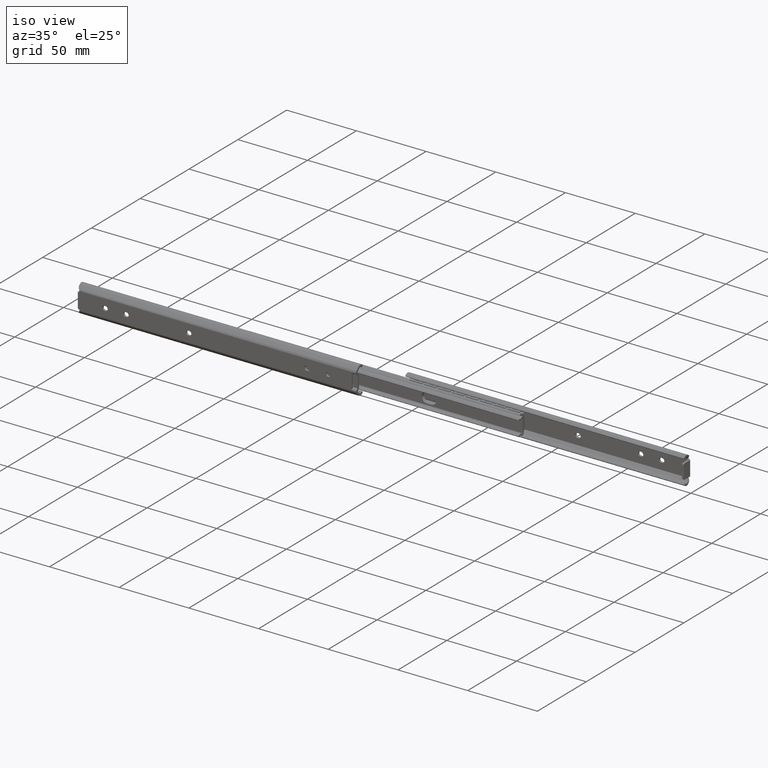
[diagram: clean part render]
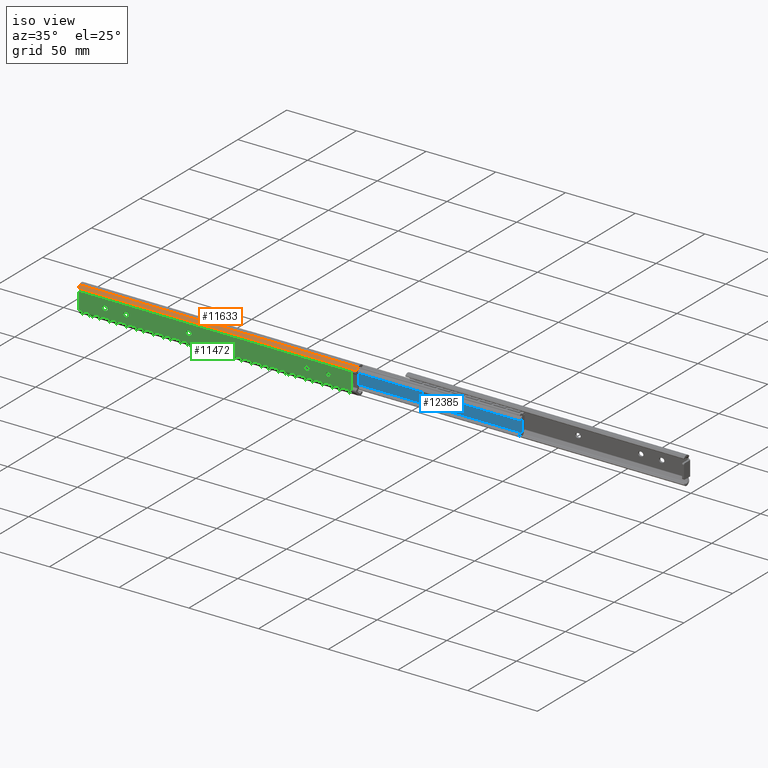
[diagram: same view with three faces highlighted in distinct colors, each labeled with its STEP entity id]
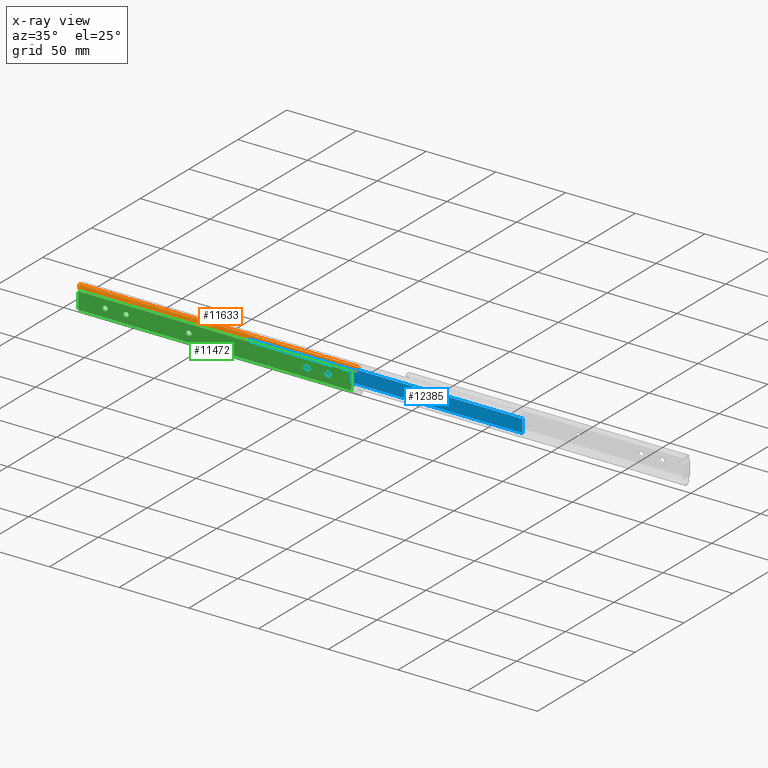
[diagram: x-ray of the same camera — body ghosted, the three highlighted faces saturated]
A machine part, iso view with three faces highlighted in distinct colors.
The next image is the same camera in x-ray (body ghosted, the three faces saturated) — at least one of them is partly hidden behind the body in this view.
Their STEP definitions:

[orange] entity #11633 — the highlighted face is a freeform B-spline surface patch.
#9667=CARTESIAN_POINT('',(199.159981460542500,-0.607033000000000,7.474195000000000));
#9668=VERTEX_POINT('',#9667);
#9669=CARTESIAN_POINT('',(199.707106890593000,-1.196151636336740,8.021320109406650));
#9670=VERTEX_POINT('',#9669);
#9671=CARTESIAN_POINT('',(199.159981460542500,-0.607033000000000,7.474195000000000));
#9672=CARTESIAN_POINT('',(199.707106890593000,-1.196151636336740,8.021320109406650));
#9673=QUASI_UNIFORM_CURVE('',1,(#9671,#9672),.UNSPECIFIED.,.F.,.U.);
#9674=EDGE_CURVE('',#9668,#9670,#9673,.T.);
#9785=CARTESIAN_POINT('',(200.0,-1.957531415335170,8.728427000000000));
#9786=VERTEX_POINT('',#9785);
#9787=CARTESIAN_POINT('',(200.0,-1.957531415335170,8.728427000000000));
#9788=CARTESIAN_POINT('',(199.999999999999970,-1.511525702522513,8.314213528262183));
#9789=CARTESIAN_POINT('',(199.707106890593000,-1.196151636336740,8.021320109406650));
#9797=(BOUNDED_CURVE()B_SPLINE_CURVE(2,(#9787,#9788,#9789),.UNSPECIFIED.,.F.,.U.)CURVE()GEOMETRIC_REPRESENTATION_ITEM()QUASI_UNIFORM_CURVE()RATIONAL_B_SPLINE_CURVE((1.0,0.923879562116460,1.0))REPRESENTATION_ITEM(''));
#9798=EDGE_CURVE('',#9786,#9670,#9797,.T.);
#10303=CARTESIAN_POINT('',(0.0,-2.466980046918095,9.201560556579119));
#10304=VERTEX_POINT('',#10303);
#10320=CARTESIAN_POINT('',(0.0,-0.607033000000087,7.474195000000000));
#10321=VERTEX_POINT('',#10320);
#10322=CARTESIAN_POINT('',(0.0,-2.466980046918095,9.201560556579119));
#10323=CARTESIAN_POINT('',(0.0,-0.607033000000087,7.474195000000000));
#10324=QUASI_UNIFORM_CURVE('',1,(#10322,#10323),.UNSPECIFIED.,.F.,.U.);
#10325=EDGE_CURVE('',#10304,#10321,#10324,.T.);
#11487=CARTESIAN_POINT('',(199.159981460542500,-0.607033000000000,7.474195000000000));
#11488=CARTESIAN_POINT('',(0.0,-0.607033000000087,7.474195000000000));
#11489=QUASI_UNIFORM_CURVE('',1,(#11487,#11488),.UNSPECIFIED.,.F.,.U.);
#11490=EDGE_CURVE('',#9668,#10321,#11489,.T.);
#11548=CARTESIAN_POINT('',(200.0,-2.466980046918005,9.201560556579020));
#11549=VERTEX_POINT('',#11548);
#11566=CARTESIAN_POINT('',(200.0,-2.466980046918005,9.201560556579020));
#11567=CARTESIAN_POINT('',(200.0,-1.957531415335170,8.728427000000000));
#11568=QUASI_UNIFORM_CURVE('',1,(#11566,#11567),.UNSPECIFIED.,.F.,.U.);
#11569=EDGE_CURVE('',#11549,#9786,#11568,.T.);
#11616=CARTESIAN_POINT('',(-9.989999612361183,-0.514128654095802,7.387913074565044));
#11617=CARTESIAN_POINT('',(-9.989999612361183,-2.559884332910641,9.287842913367777));
#11618=CARTESIAN_POINT('',(209.990004976779200,-0.514128654095802,7.387913074565044));
#11619=CARTESIAN_POINT('',(209.990004976779200,-2.559884332910641,9.287842913367777));
#11620=B_SPLINE_SURFACE_WITH_KNOTS('',1,1,((#11616,#11618),(#11617,#11619)),.UNSPECIFIED.,.F.,.F.,.U.,(2,2),(2,2),(0.0,2.791925803057120),(0.0,219.980004589140410),.UNSPECIFIED.);
#11621=ORIENTED_EDGE('',*,*,#11569,.T.);
#11622=ORIENTED_EDGE('',*,*,#9798,.T.);
#11623=ORIENTED_EDGE('',*,*,#9674,.F.);
#11624=ORIENTED_EDGE('',*,*,#11490,.T.);
#11625=ORIENTED_EDGE('',*,*,#10325,.F.);
#11626=CARTESIAN_POINT('',(200.0,-2.466980046918005,9.201560556579020));
#11627=CARTESIAN_POINT('',(0.0,-2.466980046918095,9.201560556579119));
#11628=QUASI_UNIFORM_CURVE('',1,(#11626,#11627),.UNSPECIFIED.,.F.,.U.);
#11629=EDGE_CURVE('',#11549,#10304,#11628,.T.);
#11630=ORIENTED_EDGE('',*,*,#11629,.F.);
#11631=EDGE_LOOP('',(#11621,#11622,#11623,#11624,#11625,#11630));
#11632=FACE_OUTER_BOUND('',#11631,.T.);
#11633=ADVANCED_FACE('',(#11632),#11620,.T.);

[blue] entity #12385 — the highlighted face is a freeform B-spline surface patch.
#11815=CARTESIAN_POINT('',(-111.300000000000000,-9.199999999999999,-4.641039999999910));
#11816=VERTEX_POINT('',#11815);
#11822=CARTESIAN_POINT('',(-110.099999999999990,-9.199999999999999,-4.300000000000000));
#11823=VERTEX_POINT('',#11822);
#11824=CARTESIAN_POINT('',(-111.300000000000000,-9.199999999999999,-4.641039999999910));
#11825=CARTESIAN_POINT('',(-110.099999999999990,-9.199999999999999,-4.300000000000000));
#11826=QUASI_UNIFORM_CURVE('',1,(#11824,#11825),.UNSPECIFIED.,.F.,.U.);
#11827=EDGE_CURVE('',#11816,#11823,#11826,.T.);
#11851=CARTESIAN_POINT('',(-110.099999999999990,-9.199999999999999,4.300000000000000));
#11852=VERTEX_POINT('',#11851);
#11858=CARTESIAN_POINT('',(-111.300000000000000,-9.199999999999999,4.641040000000000));
#11859=VERTEX_POINT('',#11858);
#11860=CARTESIAN_POINT('',(-110.099999999999990,-9.199999999999999,4.300000000000000));
#11861=CARTESIAN_POINT('',(-111.300000000000000,-9.199999999999999,4.641040000000000));
#11862=QUASI_UNIFORM_CURVE('',1,(#11860,#11861),.UNSPECIFIED.,.F.,.U.);
#11863=EDGE_CURVE('',#11852,#11859,#11862,.T.);
#11885=CARTESIAN_POINT('',(-110.099999999999990,-9.199999999999999,-4.300000000000000));
#11886=CARTESIAN_POINT('',(-110.099999999999990,-9.199999999999999,4.300000000000000));
#11887=QUASI_UNIFORM_CURVE('',1,(#11885,#11886),.UNSPECIFIED.,.F.,.U.);
#11888=EDGE_CURVE('',#11823,#11852,#11887,.T.);
#12077=CARTESIAN_POINT('',(85.700000000000003,-9.200000000000101,4.641040000000000));
#12078=VERTEX_POINT('',#12077);
#12094=CARTESIAN_POINT('',(85.700000000000003,-9.199999999999999,-4.641039999999910));
#12095=VERTEX_POINT('',#12094);
#12096=CARTESIAN_POINT('',(85.700000000000003,-9.199999999999999,-4.641039999999910));
#12097=CARTESIAN_POINT('',(85.700000000000003,-9.200000000000101,4.641040000000000));
#12098=QUASI_UNIFORM_CURVE('',1,(#12096,#12097),.UNSPECIFIED.,.F.,.U.);
#12099=EDGE_CURVE('',#12095,#12078,#12098,.T.);
#12237=CARTESIAN_POINT('',(-111.300000000000000,-9.199999999999999,-4.641039999999910));
#12238=CARTESIAN_POINT('',(85.700000000000003,-9.199999999999999,-4.641039999999910));
#12239=QUASI_UNIFORM_CURVE('',1,(#12237,#12238),.UNSPECIFIED.,.F.,.U.);
#12240=EDGE_CURVE('',#11816,#12095,#12239,.T.);
#12268=CARTESIAN_POINT('',(-121.140152612943500,-9.200000000000101,-5.104679757713797));
#12269=CARTESIAN_POINT('',(-121.140152612943500,-9.200000000000101,5.104679425760839));
#12270=CARTESIAN_POINT('',(95.540140283722707,-9.200000000000101,-5.104679757713797));
#12271=CARTESIAN_POINT('',(95.540140283722707,-9.200000000000101,5.104679425760839));
#12272=B_SPLINE_SURFACE_WITH_KNOTS('',1,1,((#12268,#12270),(#12269,#12271)),.UNSPECIFIED.,.F.,.F.,.U.,(2,2),(2,2),(0.0,10.209359183474641),(0.0,216.680292896666200),.UNSPECIFIED.);
#12273=ORIENTED_EDGE('',*,*,#12240,.T.);
#12274=ORIENTED_EDGE('',*,*,#12099,.T.);
#12275=CARTESIAN_POINT('',(-111.300000000000000,-9.199999999999999,4.641040000000000));
#12276=CARTESIAN_POINT('',(85.700000000000003,-9.200000000000101,4.641040000000000));
#12277=QUASI_UNIFORM_CURVE('',1,(#12275,#12276),.UNSPECIFIED.,.F.,.U.);
#12278=EDGE_CURVE('',#11859,#12078,#12277,.T.);
#12279=ORIENTED_EDGE('',*,*,#12278,.F.);
#12280=ORIENTED_EDGE('',*,*,#11863,.F.);
#12281=ORIENTED_EDGE('',*,*,#11888,.F.);
#12282=ORIENTED_EDGE('',*,*,#11827,.F.);
#12283=EDGE_LOOP('',(#12273,#12274,#12279,#12280,#12281,#12282));
#12284=FACE_OUTER_BOUND('',#12283,.T.);
#12285=CARTESIAN_POINT('',(20.300000000000299,-9.200000000000140,-3.649999999999920));
#12286=VERTEX_POINT('',#12285);
#12287=CARTESIAN_POINT('',(20.300000000000299,-9.200000000000140,3.650000000000000));
#12288=VERTEX_POINT('',#12287);
#12289=CARTESIAN_POINT('',(20.300000000000299,-9.200000000000140,-3.649999999999920));
#12290=CARTESIAN_POINT('',(23.950000000000294,-9.200000000000140,-3.650000000000000));
#12291=CARTESIAN_POINT('',(23.950000000000301,-9.200000000000140,0.0));
#12292=CARTESIAN_POINT('',(23.950000000000294,-9.200000000000140,3.650000000000000));
#12293=CARTESIAN_POINT('',(20.300000000000299,-9.200000000000140,3.650000000000000));
#12301=(BOUNDED_CURVE()B_SPLINE_CURVE(2,(#12289,#12290,#12291,#12292,#12293),.UNSPECIFIED.,.F.,.U.)B_SPLINE_CURVE_WITH_KNOTS((3,2,3),(0.0,0.500000000000000,1.0),.UNSPECIFIED.)CURVE()GEOMETRIC_REPRESENTATION_ITEM()RATIONAL_B_SPLINE_CURVE((1.0,0.707106781186547,1.0,0.707106781186547,1.0))REPRESENTATION_ITEM(''));
#12302=EDGE_CURVE('',#12286,#12288,#12301,.T.);
#12303=ORIENTED_EDGE('',*,*,#12302,.F.);
#12304=CARTESIAN_POINT('',(17.100000000000300,-9.200000000000140,-3.649999999999920));
#12305=VERTEX_POINT('',#12304);
#12306=CARTESIAN_POINT('',(17.100000000000300,-9.200000000000140,-3.649999999999920));
#12307=CARTESIAN_POINT('',(20.300000000000299,-9.200000000000140,-3.649999999999920));
#12308=QUASI_UNIFORM_CURVE('',1,(#12306,#12307),.UNSPECIFIED.,.F.,.U.);
#12309=EDGE_CURVE('',#12305,#12286,#12308,.T.);
#12310=ORIENTED_EDGE('',*,*,#12309,.F.);
#12311=CARTESIAN_POINT('',(17.100000000000001,-9.200000000000101,3.650000000000000));
#12312=VERTEX_POINT('',#12311);
#12313=CARTESIAN_POINT('',(17.100000000000001,-9.200000000000101,3.650000000000000));
#12314=CARTESIAN_POINT('',(13.450000000000299,-9.200000000000140,3.650000000000000));
#12315=CARTESIAN_POINT('',(13.450000000000299,-9.200000000000140,0.0));
#12316=CARTESIAN_POINT('',(13.450000000000299,-9.200000000000140,-3.650000000000000));
#12317=CARTESIAN_POINT('',(17.100000000000300,-9.200000000000140,-3.649999999999920));
#12325=(BOUNDED_CURVE()B_SPLINE_CURVE(2,(#12313,#12314,#12315,#12316,#12317),.UNSPECIFIED.,.F.,.U.)B_SPLINE_CURVE_WITH_KNOTS((3,2,3),(0.0,0.500000000000000,1.0),.UNSPECIFIED.)CURVE()GEOMETRIC_REPRESENTATION_ITEM()RATIONAL_B_SPLINE_CURVE((1.0,0.707106781186547,1.0,0.707106781186547,1.0))REPRESENTATION_ITEM(''));
#12326=EDGE_CURVE('',#12312,#12305,#12325,.T.);
#12327=ORIENTED_EDGE('',*,*,#12326,.F.);
#12328=CARTESIAN_POINT('',(20.300000000000299,-9.200000000000140,3.650000000000000));
#12329=CARTESIAN_POINT('',(17.100000000000001,-9.200000000000101,3.650000000000000));
#12330=QUASI_UNIFORM_CURVE('',1,(#12328,#12329),.UNSPECIFIED.,.F.,.U.);
#12331=EDGE_CURVE('',#12288,#12312,#12330,.T.);
#12332=ORIENTED_EDGE('',*,*,#12331,.F.);
#12333=EDGE_LOOP('',(#12303,#12310,#12327,#12332));
#12334=FACE_BOUND('',#12333,.T.);
#12335=CARTESIAN_POINT('',(-45.700000000000003,-9.200000000000140,-3.650000000000000));
#12336=VERTEX_POINT('',#12335);
#12337=CARTESIAN_POINT('',(-45.700000000000003,-9.200000000000140,3.650000000000000));
#12338=VERTEX_POINT('',#12337);
#12339=CARTESIAN_POINT('',(-45.700000000000003,-9.200000000000140,-3.650000000000000));
#12340=CARTESIAN_POINT('',(-42.049999999999997,-9.200000000000140,-3.650000000000000));
#12341=CARTESIAN_POINT('',(-42.049999999999997,-9.200000000000140,0.0));
#12342=CARTESIAN_POINT('',(-42.049999999999997,-9.200000000000140,3.650000000000000));
#12343=CARTESIAN_POINT('',(-45.700000000000003,-9.200000000000140,3.650000000000000));
#12351=(BOUNDED_CURVE()B_SPLINE_CURVE(2,(#12339,#12340,#12341,#12342,#12343),.UNSPECIFIED.,.F.,.U.)B_SPLINE_CURVE_WITH_KNOTS((3,2,3),(0.0,0.500000000000000,1.0),.UNSPECIFIED.)CURVE()GEOMETRIC_REPRESENTATION_ITEM()RATIONAL_B_SPLINE_CURVE((1.0,0.707106781186547,1.0,0.707106781186547,1.0))REPRESENTATION_ITEM(''));
#12352=EDGE_CURVE('',#12336,#12338,#12351,.T.);
#12353=ORIENTED_EDGE('',*,*,#12352,.F.);
#12354=CARTESIAN_POINT('',(-48.899999999999999,-9.200000000000140,-3.650000000000000));
#12355=VERTEX_POINT('',#12354);
#12356=CARTESIAN_POINT('',(-48.899999999999999,-9.200000000000140,-3.650000000000000));
#12357=CARTESIAN_POINT('',(-45.700000000000003,-9.200000000000140,-3.650000000000000));
#12358=QUASI_UNIFORM_CURVE('',1,(#12356,#12357),.UNSPECIFIED.,.F.,.U.);
#12359=EDGE_CURVE('',#12355,#12336,#12358,.T.);
#12360=ORIENTED_EDGE('',*,*,#12359,.F.);
#12361=CARTESIAN_POINT('',(-48.899999999999999,-9.200000000000101,3.650000000000090));
#12362=VERTEX_POINT('',#12361);
#12363=CARTESIAN_POINT('',(-48.899999999999999,-9.200000000000140,3.650000000000000));
#12364=CARTESIAN_POINT('',(-52.549999999999997,-9.200000000000140,3.650000000000000));
#12365=CARTESIAN_POINT('',(-52.549999999999997,-9.200000000000140,0.0));
#12366=CARTESIAN_POINT('',(-52.549999999999997,-9.200000000000140,-3.650000000000000));
#12367=CARTESIAN_POINT('',(-48.899999999999999,-9.200000000000140,-3.650000000000000));
#12375=(BOUNDED_CURVE()B_SPLINE_CURVE(2,(#12363,#12364,#12365,#12366,#12367),.UNSPECIFIED.,.F.,.U.)B_SPLINE_CURVE_WITH_KNOTS((3,2,3),(0.0,0.500000000000000,1.0),.UNSPECIFIED.)CURVE()GEOMETRIC_REPRESENTATION_ITEM()RATIONAL_B_SPLINE_CURVE((1.0,0.707106781186547,1.0,0.707106781186547,1.0))REPRESENTATION_ITEM(''));
#12376=EDGE_CURVE('',#12362,#12355,#12375,.T.);
#12377=ORIENTED_EDGE('',*,*,#12376,.F.);
#12378=CARTESIAN_POINT('',(-45.700000000000003,-9.200000000000140,3.650000000000000));
#12379=CARTESIAN_POINT('',(-48.899999999999999,-9.200000000000101,3.650000000000090));
#12380=QUASI_UNIFORM_CURVE('',1,(#12378,#12379),.UNSPECIFIED.,.F.,.U.);
#12381=EDGE_CURVE('',#12338,#12362,#12380,.T.);
#12382=ORIENTED_EDGE('',*,*,#12381,.F.);
#12383=EDGE_LOOP('',(#12353,#12360,#12377,#12382));
#12384=FACE_BOUND('',#12383,.T.);
#12385=ADVANCED_FACE('',(#12284,#12334,#12384),#12272,.F.);

[green] entity #11472 — the highlighted face is a freeform B-spline surface patch.
#8533=CARTESIAN_POINT('',(21.597015677321561,4.857226E-017,-0.097677665764265));
#8534=VERTEX_POINT('',#8533);
#8540=CARTESIAN_POINT('',(20.0,0.0,-1.600000000000000));
#8541=VERTEX_POINT('',#8540);
#8542=CARTESIAN_POINT('',(20.0,0.0,-1.600000000000000));
#8543=CARTESIAN_POINT('',(21.505129702311947,0.0,-1.600000000000001));
#8544=CARTESIAN_POINT('',(21.597015677321558,4.857226E-017,-0.097677665764265));
#8552=(BOUNDED_CURVE()B_SPLINE_CURVE(2,(#8542,#8543,#8544),.UNSPECIFIED.,.F.,.U.)B_SPLINE_CURVE_WITH_KNOTS((3,3),(0.500000000000000,0.739332961699916),.UNSPECIFIED.)CURVE()GEOMETRIC_REPRESENTATION_ITEM()RATIONAL_B_SPLINE_CURVE((1.0,0.719603993918219,0.976072040511481))REPRESENTATION_ITEM(''));
#8553=EDGE_CURVE('',#8541,#8534,#8552,.T.);
#8555=CARTESIAN_POINT('',(18.411184758233269,4.614071E-017,0.188854778943284));
#8556=VERTEX_POINT('',#8555);
#8557=CARTESIAN_POINT('',(18.411184758233265,4.614071E-017,0.188854778943284));
#8558=CARTESIAN_POINT('',(18.399999999999991,0.0,0.094758594972449));
#8559=CARTESIAN_POINT('',(18.399999999999999,0.0,0.0));
#8560=CARTESIAN_POINT('',(18.399999999999991,0.0,-1.600000000000000));
#8561=CARTESIAN_POINT('',(20.0,0.0,-1.600000000000000));
#8569=(BOUNDED_CURVE()B_SPLINE_CURVE(2,(#8557,#8558,#8559,#8560,#8561),.UNSPECIFIED.,.F.,.U.)B_SPLINE_CURVE_WITH_KNOTS((3,2,3),(0.229562472772652,0.250000000000000,0.500000000000000),.UNSPECIFIED.)CURVE()GEOMETRIC_REPRESENTATION_ITEM()RATIONAL_B_SPLINE_CURVE((0.956026752731590,0.976055947463178,1.0,0.707106781186548,1.0))REPRESENTATION_ITEM(''));
#8570=EDGE_CURVE('',#8556,#8541,#8569,.T.);
#8614=CARTESIAN_POINT('',(20.0,0.0,1.600000000000000));
#8615=VERTEX_POINT('',#8614);
#8616=CARTESIAN_POINT('',(20.0,0.0,1.600000000000000));
#8617=CARTESIAN_POINT('',(18.578920764769308,0.0,1.600000000000000));
#8618=CARTESIAN_POINT('',(18.411184758233272,4.614071E-017,0.188854778943284));
#8626=(BOUNDED_CURVE()B_SPLINE_CURVE(2,(#8616,#8617,#8618),.UNSPECIFIED.,.F.,.U.)B_SPLINE_CURVE_WITH_KNOTS((3,3),(0.0,0.229562472772652),.UNSPECIFIED.)CURVE()GEOMETRIC_REPRESENTATION_ITEM()RATIONAL_B_SPLINE_CURVE((1.0,0.731050833723370,0.956026752731590))REPRESENTATION_ITEM(''));
#8627=EDGE_CURVE('',#8615,#8556,#8626,.T.);
#8629=CARTESIAN_POINT('',(21.597015677321558,4.857226E-017,-0.097677665764265));
#8630=CARTESIAN_POINT('',(21.600000000000001,0.0,-0.048884423793270));
#8631=CARTESIAN_POINT('',(21.600000000000001,0.0,0.0));
#8632=CARTESIAN_POINT('',(21.600000000000005,0.0,1.600000000000000));
#8633=CARTESIAN_POINT('',(20.0,0.0,1.600000000000000));
#8641=(BOUNDED_CURVE()B_SPLINE_CURVE(2,(#8629,#8630,#8631,#8632,#8633),.UNSPECIFIED.,.F.,.U.)B_SPLINE_CURVE_WITH_KNOTS((3,2,3),(0.739332961699916,0.750000000000000,1.0),.UNSPECIFIED.)CURVE()GEOMETRIC_REPRESENTATION_ITEM()RATIONAL_B_SPLINE_CURVE((0.976072040511482,0.987502787268329,1.0,0.707106781186548,1.0))REPRESENTATION_ITEM(''));
#8642=EDGE_CURVE('',#8534,#8615,#8641,.T.);
#8677=CARTESIAN_POINT('',(35.299999999999997,8.526513E-014,-1.600000000000080));
#8678=VERTEX_POINT('',#8677);
#8684=CARTESIAN_POINT('',(34.700000000000003,0.0,-1.600000000000000));
#8685=VERTEX_POINT('',#8684);
#8686=CARTESIAN_POINT('',(34.700000000000003,0.0,-1.600000000000000));
#8687=CARTESIAN_POINT('',(35.299999999999997,8.526513E-014,-1.600000000000080));
#8688=QUASI_UNIFORM_CURVE('',1,(#8686,#8687),.UNSPECIFIED.,.F.,.U.);
#8689=EDGE_CURVE('',#8685,#8678,#8688,.T.);
#8735=CARTESIAN_POINT('',(34.700000000000003,0.0,1.600000000000025));
#8736=VERTEX_POINT('',#8735);
#8737=CARTESIAN_POINT('',(34.700000000000003,0.0,1.600000000000000));
#8738=CARTESIAN_POINT('',(33.100000000000009,0.0,1.600000000000000));
#8739=CARTESIAN_POINT('',(33.100000000000001,0.0,0.0));
#8740=CARTESIAN_POINT('',(33.100000000000009,0.0,-1.600000000000000));
#8741=CARTESIAN_POINT('',(34.700000000000003,0.0,-1.600000000000000));
#8749=(BOUNDED_CURVE()B_SPLINE_CURVE(2,(#8737,#8738,#8739,#8740,#8741),.UNSPECIFIED.,.F.,.U.)B_SPLINE_CURVE_WITH_KNOTS((3,2,3),(0.0,0.500000000000000,1.0),.UNSPECIFIED.)CURVE()GEOMETRIC_REPRESENTATION_ITEM()RATIONAL_B_SPLINE_CURVE((1.0,0.707106781186548,1.0,0.707106781186548,1.0))REPRESENTATION_ITEM(''));
#8750=EDGE_CURVE('',#8736,#8685,#8749,.T.);
#8773=CARTESIAN_POINT('',(35.299999999999997,0.0,1.600000000000025));
#8774=VERTEX_POINT('',#8773);
#8775=CARTESIAN_POINT('',(35.299999999999997,0.0,1.600000000000025));
#8776=CARTESIAN_POINT('',(34.700000000000003,0.0,1.600000000000025));
#8777=QUASI_UNIFORM_CURVE('',1,(#8775,#8776),.UNSPECIFIED.,.F.,.U.);
#8778=EDGE_CURVE('',#8774,#8736,#8777,.T.);
#8822=CARTESIAN_POINT('',(35.299999999999997,8.526513E-014,-1.600000000000080));
#8823=CARTESIAN_POINT('',(36.900000000000006,0.0,-1.600000000000000));
#8824=CARTESIAN_POINT('',(36.899999999999999,0.0,0.0));
#8825=CARTESIAN_POINT('',(36.900000000000006,0.0,1.600000000000000));
#8826=CARTESIAN_POINT('',(35.299999999999997,0.0,1.600000000000000));
#8834=(BOUNDED_CURVE()B_SPLINE_CURVE(2,(#8822,#8823,#8824,#8825,#8826),.UNSPECIFIED.,.F.,.U.)B_SPLINE_CURVE_WITH_KNOTS((3,2,3),(0.0,0.500000000000000,1.0),.UNSPECIFIED.)CURVE()GEOMETRIC_REPRESENTATION_ITEM()RATIONAL_B_SPLINE_CURVE((1.0,0.707106781186548,1.0,0.707106781186548,1.0))REPRESENTATION_ITEM(''));
#8835=EDGE_CURVE('',#8678,#8774,#8834,.T.);
#8878=CARTESIAN_POINT('',(120.300000000000000,1.110223E-013,1.600000000000000));
#8879=VERTEX_POINT('',#8878);
#8885=CARTESIAN_POINT('',(120.300000000000000,0.0,-1.600000000000000));
#8886=VERTEX_POINT('',#8885);
#8887=CARTESIAN_POINT('',(120.300000000000000,0.0,-1.600000000000000));
#8888=CARTESIAN_POINT('',(121.900000000000010,0.0,-1.600000000000000));
#8889=CARTESIAN_POINT('',(121.900000000000010,0.0,0.0));
#8890=CARTESIAN_POINT('',(121.900000000000010,0.0,1.600000000000000));
#8891=CARTESIAN_POINT('',(120.300000000000000,0.0,1.600000000000000));
#8899=(BOUNDED_CURVE()B_SPLINE_CURVE(2,(#8887,#8888,#8889,#8890,#8891),.UNSPECIFIED.,.F.,.U.)B_SPLINE_CURVE_WITH_KNOTS((3,2,3),(0.0,0.500000000000000,1.0),.UNSPECIFIED.)CURVE()GEOMETRIC_REPRESENTATION_ITEM()RATIONAL_B_SPLINE_CURVE((1.0,0.707106781186548,1.0,0.707106781186548,1.0))REPRESENTATION_ITEM(''));
#8900=EDGE_CURVE('',#8886,#8879,#8899,.T.);
#8923=CARTESIAN_POINT('',(119.700000000000000,0.0,-1.600000000000000));
#8924=VERTEX_POINT('',#8923);
#8925=CARTESIAN_POINT('',(119.700000000000000,0.0,-1.600000000000000));
#8926=CARTESIAN_POINT('',(120.300000000000000,0.0,-1.600000000000000));
#8927=QUASI_UNIFORM_CURVE('',1,(#8925,#8926),.UNSPECIFIED.,.F.,.U.);
#8928=EDGE_CURVE('',#8924,#8886,#8927,.T.);
#8974=CARTESIAN_POINT('',(119.700000000000000,0.0,1.600000000000000));
#8975=VERTEX_POINT('',#8974);
#8976=CARTESIAN_POINT('',(119.700000000000000,0.0,1.600000000000000));
#8977=CARTESIAN_POINT('',(118.099999999999980,0.0,1.600000000000000));
#8978=CARTESIAN_POINT('',(118.099999999999990,0.0,0.0));
#8979=CARTESIAN_POINT('',(118.099999999999980,0.0,-1.600000000000000));
#8980=CARTESIAN_POINT('',(119.700000000000000,0.0,-1.600000000000000));
#8988=(BOUNDED_CURVE()B_SPLINE_CURVE(2,(#8976,#8977,#8978,#8979,#8980),.UNSPECIFIED.,.F.,.U.)B_SPLINE_CURVE_WITH_KNOTS((3,2,3),(0.0,0.500000000000000,1.0),.UNSPECIFIED.)CURVE()GEOMETRIC_REPRESENTATION_ITEM()RATIONAL_B_SPLINE_CURVE((1.0,0.707106781186548,1.0,0.707106781186548,1.0))REPRESENTATION_ITEM(''));
#8989=EDGE_CURVE('',#8975,#8924,#8988,.T.);
#9010=CARTESIAN_POINT('',(120.300000000000000,1.110223E-013,1.600000000000000));
#9011=CARTESIAN_POINT('',(119.700000000000000,0.0,1.600000000000000));
#9012=QUASI_UNIFORM_CURVE('',1,(#9010,#9011),.UNSPECIFIED.,.F.,.U.);
#9013=EDGE_CURVE('',#8879,#8975,#9012,.T.);
#9033=CARTESIAN_POINT('',(165.300000000000010,8.526513E-014,-1.600000000000000));
#9034=VERTEX_POINT('',#9033);
#9040=CARTESIAN_POINT('',(164.699999999999990,0.0,-1.600000000000000));
#9041=VERTEX_POINT('',#9040);
#9042=CARTESIAN_POINT('',(164.699999999999990,0.0,-1.600000000000000));
#9043=CARTESIAN_POINT('',(165.300000000000010,8.526513E-014,-1.600000000000000));
#9044=QUASI_UNIFORM_CURVE('',1,(#9042,#9043),.UNSPECIFIED.,.F.,.U.);
#9045=EDGE_CURVE('',#9041,#9034,#9044,.T.);
#9091=CARTESIAN_POINT('',(164.699999999999990,0.0,1.599999999999910));
#9092=VERTEX_POINT('',#9091);
#9093=CARTESIAN_POINT('',(164.699999999999990,0.0,1.600000000000000));
#9094=CARTESIAN_POINT('',(163.099999999999990,0.0,1.600000000000000));
#9095=CARTESIAN_POINT('',(163.099999999999990,0.0,0.0));
#9096=CARTESIAN_POINT('',(163.099999999999990,0.0,-1.600000000000000));
#9097=CARTESIAN_POINT('',(164.699999999999990,0.0,-1.600000000000000));
#9105=(BOUNDED_CURVE()B_SPLINE_CURVE(2,(#9093,#9094,#9095,#9096,#9097),.UNSPECIFIED.,.F.,.U.)B_SPLINE_CURVE_WITH_KNOTS((3,2,3),(0.0,0.500000000000000,1.0),.UNSPECIFIED.)CURVE()GEOMETRIC_REPRESENTATION_ITEM()RATIONAL_B_SPLINE_CURVE((1.0,0.707106781186548,1.0,0.707106781186548,1.0))REPRESENTATION_ITEM(''));
#9106=EDGE_CURVE('',#9092,#9041,#9105,.T.);
#9129=CARTESIAN_POINT('',(165.300000000000010,0.0,1.599999999999910));
#9130=VERTEX_POINT('',#9129);
#9131=CARTESIAN_POINT('',(165.300000000000010,0.0,1.599999999999910));
#9132=CARTESIAN_POINT('',(164.699999999999990,0.0,1.599999999999910));
#9133=QUASI_UNIFORM_CURVE('',1,(#9131,#9132),.UNSPECIFIED.,.F.,.U.);
#9134=EDGE_CURVE('',#9130,#9092,#9133,.T.);
#9178=CARTESIAN_POINT('',(165.300000000000010,0.0,-1.600000000000000));
#9179=CARTESIAN_POINT('',(166.900000000000010,0.0,-1.600000000000000));
#9180=CARTESIAN_POINT('',(166.900000000000010,0.0,0.0));
#9181=CARTESIAN_POINT('',(166.900000000000010,0.0,1.600000000000000));
#9182=CARTESIAN_POINT('',(165.300000000000010,0.0,1.600000000000000));
#9190=(BOUNDED_CURVE()B_SPLINE_CURVE(2,(#9178,#9179,#9180,#9181,#9182),.UNSPECIFIED.,.F.,.U.)B_SPLINE_CURVE_WITH_KNOTS((3,2,3),(0.0,0.500000000000000,1.0),.UNSPECIFIED.)CURVE()GEOMETRIC_REPRESENTATION_ITEM()RATIONAL_B_SPLINE_CURVE((1.0,0.707106781186548,1.0,0.707106781186548,1.0))REPRESENTATION_ITEM(''));
#9191=EDGE_CURVE('',#9034,#9130,#9190,.T.);
#9211=CARTESIAN_POINT('',(180.300000000000010,8.526513E-014,-1.600000000000000));
#9212=VERTEX_POINT('',#9211);
#9218=CARTESIAN_POINT('',(179.699999999999990,0.0,-1.600000000000000));
#9219=VERTEX_POINT('',#9218);
#9220=CARTESIAN_POINT('',(179.699999999999990,0.0,-1.600000000000000));
#9221=CARTESIAN_POINT('',(180.300000000000010,8.526513E-014,-1.600000000000000));
#9222=QUASI_UNIFORM_CURVE('',1,(#9220,#9221),.UNSPECIFIED.,.F.,.U.);
#9223=EDGE_CURVE('',#9219,#9212,#9222,.T.);
#9269=CARTESIAN_POINT('',(179.699999999999990,0.0,1.599999999999910));
#9270=VERTEX_POINT('',#9269);
#9271=CARTESIAN_POINT('',(179.699999999999990,0.0,1.600000000000000));
#9272=CARTESIAN_POINT('',(178.099999999999970,0.0,1.600000000000000));
#9273=CARTESIAN_POINT('',(178.099999999999990,0.0,0.0));
#9274=CARTESIAN_POINT('',(178.099999999999970,0.0,-1.600000000000000));
#9275=CARTESIAN_POINT('',(179.699999999999990,0.0,-1.600000000000000));
#9283=(BOUNDED_CURVE()B_SPLINE_CURVE(2,(#9271,#9272,#9273,#9274,#9275),.UNSPECIFIED.,.F.,.U.)B_SPLINE_CURVE_WITH_KNOTS((3,2,3),(0.0,0.500000000000000,1.0),.UNSPECIFIED.)CURVE()GEOMETRIC_REPRESENTATION_ITEM()RATIONAL_B_SPLINE_CURVE((1.0,0.707106781186548,1.0,0.707106781186548,1.0))REPRESENTATION_ITEM(''));
#9284=EDGE_CURVE('',#9270,#9219,#9283,.T.);
#9307=CARTESIAN_POINT('',(180.300000000000010,0.0,1.599999999999910));
#9308=VERTEX_POINT('',#9307);
#9309=CARTESIAN_POINT('',(180.300000000000010,0.0,1.599999999999910));
#9310=CARTESIAN_POINT('',(179.699999999999990,0.0,1.599999999999910));
#9311=QUASI_UNIFORM_CURVE('',1,(#9309,#9310),.UNSPECIFIED.,.F.,.U.);
#9312=EDGE_CURVE('',#9308,#9270,#9311,.T.);
#9356=CARTESIAN_POINT('',(180.300000000000010,0.0,-1.600000000000000));
#9357=CARTESIAN_POINT('',(181.899999999999980,0.0,-1.600000000000000));
#9358=CARTESIAN_POINT('',(181.900000000000010,0.0,0.0));
#9359=CARTESIAN_POINT('',(181.899999999999980,0.0,1.600000000000000));
#9360=CARTESIAN_POINT('',(180.300000000000010,0.0,1.600000000000000));
#9368=(BOUNDED_CURVE()B_SPLINE_CURVE(2,(#9356,#9357,#9358,#9359,#9360),.UNSPECIFIED.,.F.,.U.)B_SPLINE_CURVE_WITH_KNOTS((3,2,3),(0.0,0.500000000000000,1.0),.UNSPECIFIED.)CURVE()GEOMETRIC_REPRESENTATION_ITEM()RATIONAL_B_SPLINE_CURVE((1.0,0.707106781186548,1.0,0.707106781186548,1.0))REPRESENTATION_ITEM(''));
#9369=EDGE_CURVE('',#9212,#9308,#9368,.T.);
#9428=CARTESIAN_POINT('',(199.0,0.0,-5.383484861008840));
#9429=VERTEX_POINT('',#9428);
#9441=CARTESIAN_POINT('',(199.0,0.0,5.383484861008751));
#9442=VERTEX_POINT('',#9441);
#9443=CARTESIAN_POINT('',(199.0,0.0,5.383484861008751));
#9444=CARTESIAN_POINT('',(199.0,0.0,-5.383484861008840));
#9445=QUASI_UNIFORM_CURVE('',1,(#9443,#9444),.UNSPECIFIED.,.F.,.U.);
#9446=EDGE_CURVE('',#9442,#9429,#9445,.T.);
#9852=CARTESIAN_POINT('',(198.424053688014000,0.0,6.081989000000000));
#9853=VERTEX_POINT('',#9852);
#9854=CARTESIAN_POINT('',(198.424053688014000,0.0,6.081989000000002));
#9855=CARTESIAN_POINT('',(198.534727763389700,0.0,5.586546312725764));
#9856=CARTESIAN_POINT('',(199.0,0.0,5.383484861008813));
#9864=(BOUNDED_CURVE()B_SPLINE_CURVE(2,(#9854,#9855,#9856),.UNSPECIFIED.,.F.,.U.)CURVE()GEOMETRIC_REPRESENTATION_ITEM()QUASI_UNIFORM_CURVE()RATIONAL_B_SPLINE_CURVE((1.0,0.891680690258836,1.0))REPRESENTATION_ITEM(''));
#9865=EDGE_CURVE('',#9853,#9442,#9864,.T.);
#10066=CARTESIAN_POINT('',(198.424053688014000,0.0,-6.081989000000000));
#10067=VERTEX_POINT('',#10066);
#10068=CARTESIAN_POINT('',(199.0,0.0,-5.383484861008911));
#10069=CARTESIAN_POINT('',(198.534727763389780,0.0,-5.586546312725836));
#10070=CARTESIAN_POINT('',(198.424053688014110,0.0,-6.081989000000006));
#10078=(BOUNDED_CURVE()B_SPLINE_CURVE(2,(#10068,#10069,#10070),.UNSPECIFIED.,.F.,.U.)CURVE()GEOMETRIC_REPRESENTATION_ITEM()QUASI_UNIFORM_CURVE()RATIONAL_B_SPLINE_CURVE((1.0,0.891680690258857,1.0))REPRESENTATION_ITEM(''));
#10079=EDGE_CURVE('',#9429,#10067,#10078,.T.);
#11391=CARTESIAN_POINT('',(3.100000000000000,7.958044E-014,-6.081989000000000));
#11392=VERTEX_POINT('',#11391);
#11393=CARTESIAN_POINT('',(198.424053688014000,0.0,-6.081989000000000));
#11394=CARTESIAN_POINT('',(3.100000000000000,7.958044E-014,-6.081989000000000));
#11395=QUASI_UNIFORM_CURVE('',1,(#11393,#11394),.UNSPECIFIED.,.F.,.U.);
#11396=EDGE_CURVE('',#10067,#11392,#11395,.T.);
#11419=CARTESIAN_POINT('',(-6.685204620307786,8.526513E-014,-6.689579519878855));
#11420=CARTESIAN_POINT('',(-6.685204620307786,8.526513E-014,6.689579084861101));
#11421=CARTESIAN_POINT('',(208.785209874755310,8.526513E-014,-6.689579519878854));
#11422=CARTESIAN_POINT('',(208.785209874755310,8.526513E-014,6.689579084861101));
#11423=B_SPLINE_SURFACE_WITH_KNOTS('',1,1,((#11419,#11421),(#11420,#11422)),.UNSPECIFIED.,.F.,.F.,.U.,(2,2),(2,2),(0.0,13.379158604739960),(0.0,215.470414495063100),.UNSPECIFIED.);
#11424=ORIENTED_EDGE('',*,*,#9865,.T.);
#11425=ORIENTED_EDGE('',*,*,#9446,.T.);
#11426=ORIENTED_EDGE('',*,*,#10079,.T.);
#11427=ORIENTED_EDGE('',*,*,#11396,.T.);
#11428=CARTESIAN_POINT('',(3.100000000000000,-9.063930E-014,6.081989000000000));
#11429=VERTEX_POINT('',#11428);
#11430=CARTESIAN_POINT('',(3.100000000000000,7.958044E-014,-6.081989000000000));
#11431=CARTESIAN_POINT('',(3.100000000000000,-9.063930E-014,6.081989000000000));
#11432=QUASI_UNIFORM_CURVE('',1,(#11430,#11431),.UNSPECIFIED.,.F.,.U.);
#11433=EDGE_CURVE('',#11392,#11429,#11432,.T.);
#11434=ORIENTED_EDGE('',*,*,#11433,.T.);
#11435=CARTESIAN_POINT('',(198.424053688014000,0.0,6.081989000000000));
#11436=CARTESIAN_POINT('',(3.100000000000000,-9.063930E-014,6.081989000000000));
#11437=QUASI_UNIFORM_CURVE('',1,(#11435,#11436),.UNSPECIFIED.,.F.,.U.);
#11438=EDGE_CURVE('',#9853,#11429,#11437,.T.);
#11439=ORIENTED_EDGE('',*,*,#11438,.F.);
#11440=EDGE_LOOP('',(#11424,#11425,#11426,#11427,#11434,#11439));
#11441=FACE_OUTER_BOUND('',#11440,.T.);
#11442=ORIENTED_EDGE('',*,*,#8835,.T.);
#11443=ORIENTED_EDGE('',*,*,#8778,.T.);
#11444=ORIENTED_EDGE('',*,*,#8750,.T.);
#11445=ORIENTED_EDGE('',*,*,#8689,.T.);
#11446=EDGE_LOOP('',(#11442,#11443,#11444,#11445));
#11447=FACE_BOUND('',#11446,.T.);
#11448=ORIENTED_EDGE('',*,*,#9013,.T.);
#11449=ORIENTED_EDGE('',*,*,#8989,.T.);
#11450=ORIENTED_EDGE('',*,*,#8928,.T.);
#11451=ORIENTED_EDGE('',*,*,#8900,.T.);
#11452=EDGE_LOOP('',(#11448,#11449,#11450,#11451));
#11453=FACE_BOUND('',#11452,.T.);
#11454=ORIENTED_EDGE('',*,*,#9191,.T.);
#11455=ORIENTED_EDGE('',*,*,#9134,.T.);
#11456=ORIENTED_EDGE('',*,*,#9106,.T.);
#11457=ORIENTED_EDGE('',*,*,#9045,.T.);
#11458=EDGE_LOOP('',(#11454,#11455,#11456,#11457));
#11459=FACE_BOUND('',#11458,.T.);
#11460=ORIENTED_EDGE('',*,*,#9369,.T.);
#11461=ORIENTED_EDGE('',*,*,#9312,.T.);
#11462=ORIENTED_EDGE('',*,*,#9284,.T.);
#11463=ORIENTED_EDGE('',*,*,#9223,.T.);
#11464=EDGE_LOOP('',(#11460,#11461,#11462,#11463));
#11465=FACE_BOUND('',#11464,.T.);
#11466=ORIENTED_EDGE('',*,*,#8553,.T.);
#11467=ORIENTED_EDGE('',*,*,#8642,.T.);
#11468=ORIENTED_EDGE('',*,*,#8627,.T.);
#11469=ORIENTED_EDGE('',*,*,#8570,.T.);
#11470=EDGE_LOOP('',(#11466,#11467,#11468,#11469));
#11471=FACE_BOUND('',#11470,.T.);
#11472=ADVANCED_FACE('',(#11441,#11447,#11453,#11459,#11465,#11471),#11423,.T.);